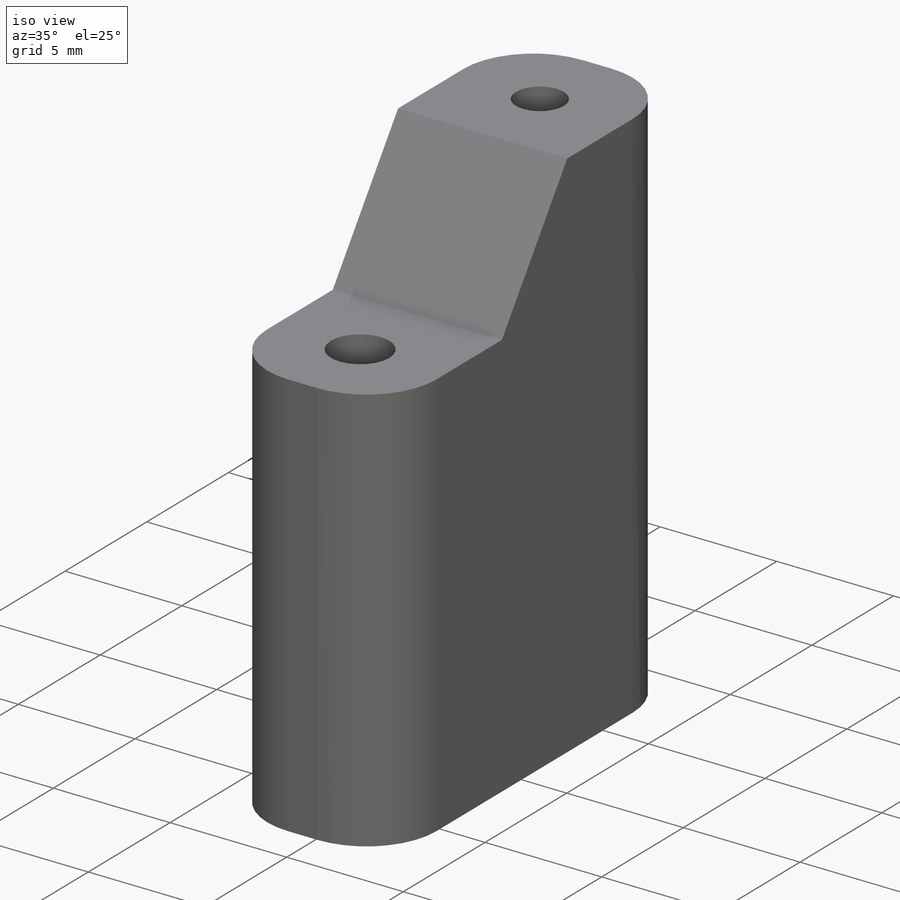
[diagram: iso view]
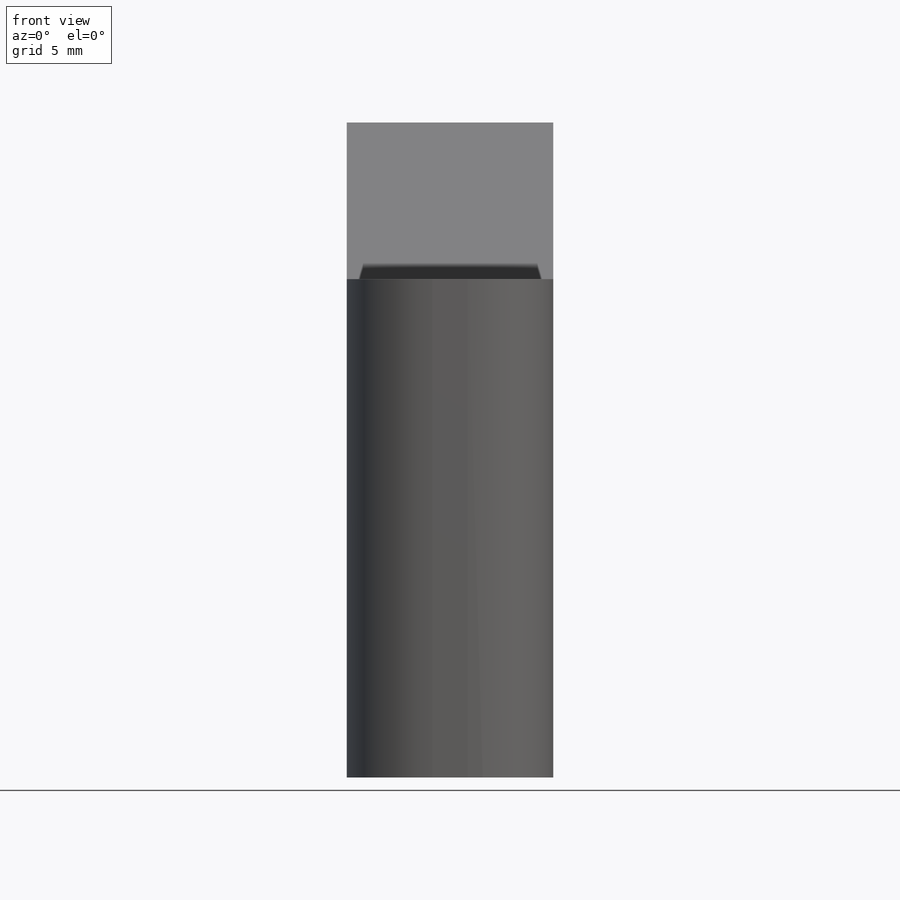
[diagram: front view]
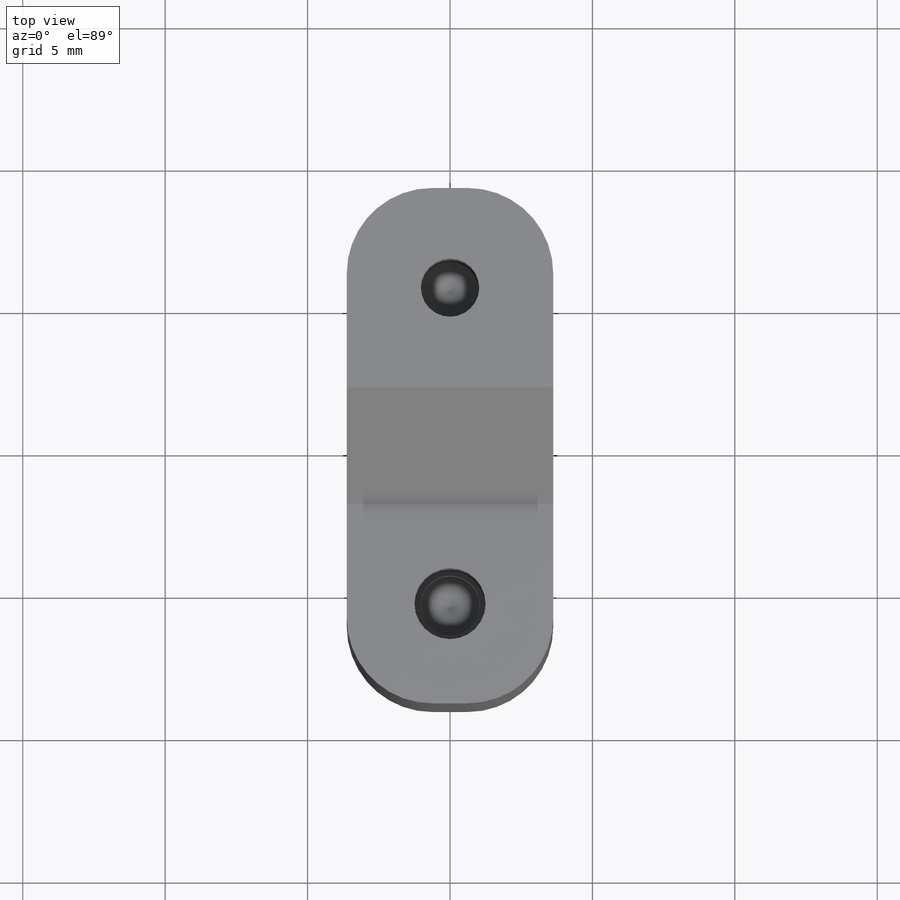
[diagram: top view]
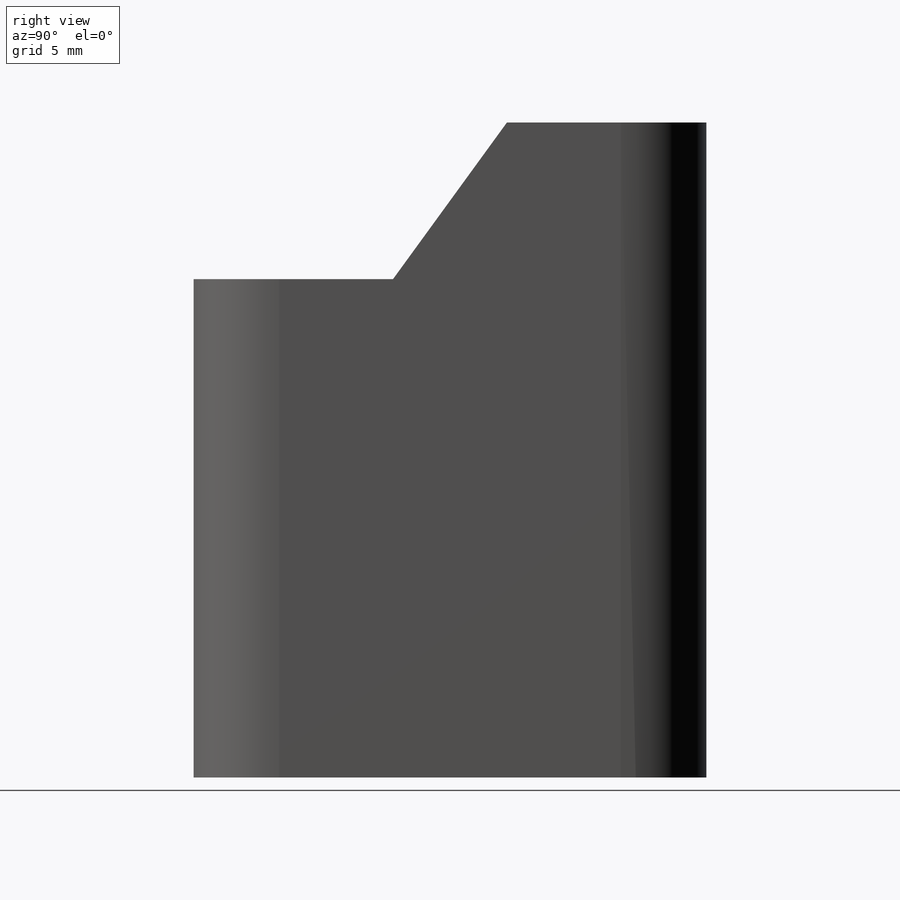
[diagram: right view]
SOLIDWORKS PART (.sldprt)
format: sldprt  version: not decoded by parser v0  size: 285,184 bytes
history: native  units: mm
features: sketch x8, hole x3, thread x2, material x1, extrude x1, cut_extrude x1, fillet x1 (+12 scaffold rows collapsed)
feature tree (29):
  scaffold x12  (default folders/planes/origin — collapsed)
  material  "Delrin 2700 NC010, Low Viscosity Acetal Copolymer (SS)"
  sketch  "Sketch1"  dims[D1=7.25mm D2=18.0mm]
  extrude  "Boss-Extrude1"  Depth=23mm
  sketch  "Sketch2"  dims[D1=17.5mm D2=7.0mm D3=7.0mm]
  cut_extrude  "Cut-Extrude1"  [1 undecoded]
  hole  "M2.5x0.45 Tapped Hole1"  Diameter=2.05mm Depth=6.35mm
  sketch  "Sketch4"
  sketch  "Sketch3"  dims[hole-wizard template sketch: 47 standard entries collapsed; hole parameters kept: c15.Tap Drill Depth=6.35mm c15.D3=~14.816244mm c15.Drill Angle=118.0deg]
  thread  "Hole Thread1"  Diameter=5mm  [1 undecoded]
  hole  "M2.5x0.45 Tapped Hole2"  Diameter=2.05mm Depth=6.35mm
  sketch  "Sketch6"
  sketch  "Sketch5"  dims[hole-wizard template sketch: 47 standard entries collapsed; hole parameters kept: c15.Tap Drill Depth=6.35mm c15.D3=~14.816244mm c15.Drill Angle=118.0deg]
  thread  "Hole Thread2"  Diameter=5mm  [1 undecoded]
  hole  "M2.5x0.45 Tapped Hole3"  Diameter=2.05mm Depth=6.35mm
  sketch  "Sketch8"
  sketch  "Sketch7"  dims[hole-wizard template sketch: 28 standard entries collapsed; hole parameters kept: c8.Tap Drill Dia.=2.05mm c8.Tap Drill Depth=6.35mm c8.Thread Major Dia.=2.5mm c8.Thread Depth=5.0mm c8.D5=~14.816244mm c8.Drill Angle=118.0deg]
  fillet  "Fillet1"  Radius=3mm
decode coverage: 12 of 16 modeling features carry decoded parameters
note: ~ marks probable driven/reference dimensions
note: 3 parameter values undecoded
note: suppression state not decoded; provenance and decode notes live in map.json
